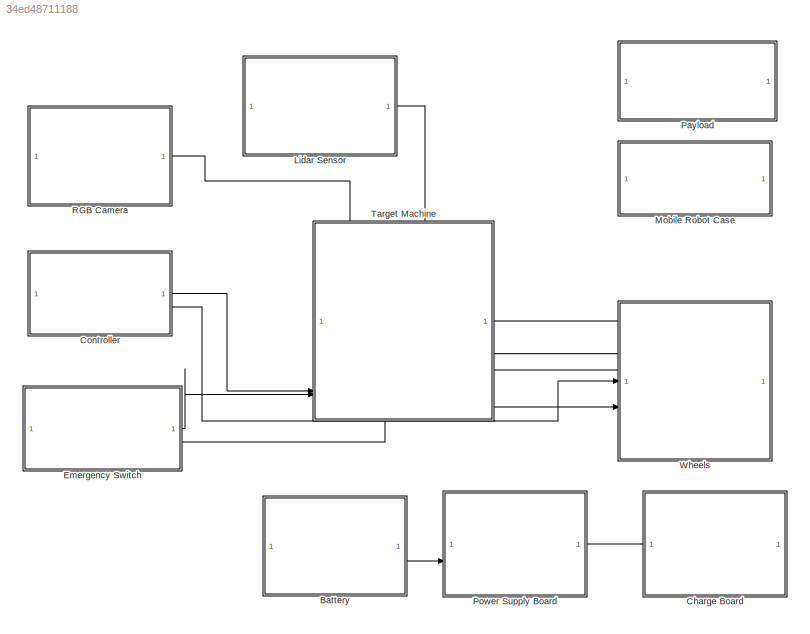
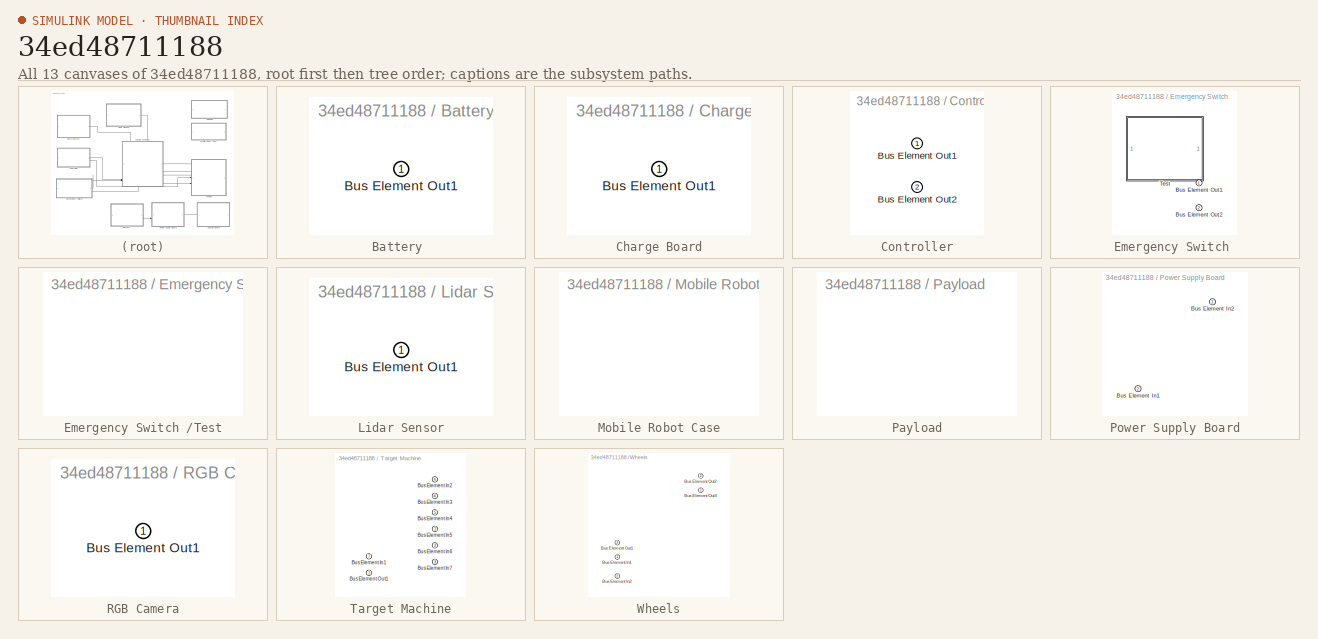
[diagram: thumbnail index - all 13 canvases of the model, root first then tree order]
MODEL slx_34ed48711188
KIND model
CONFIG AbsTol = auto
CONFIG EnableMultiTasking = off
CONFIG FixedStep = auto
CONFIG MaxStep = auto
CONFIG MinStep = auto
CONFIG RelTol = 1e-3
CONFIG SampleTimeConstraint = Unconstrained
CONFIG SolverName = VariableStepAuto
CONFIG StartTime = 0.0
CONFIG StopTime = 10.0
BLOCK [SubSystem] Battery 
  PortSchema = {"entries":[{"content":{"headerSize":26,"margin":15,"minimumSpacing":25,"sides":[{"content":{},"type":"ConnectorPlacement.EquallySpacedRectSide","uuid":"52cfc6e8-b07b-405a-8482-438c255d2b0b"},{"content":{"connectorIds":["Out1"],"side":"RIGHT"},"type":"ConnectorPlacement.EquallySpacedRectSide","uuid":"f1465f6c-6812-4300-a41b-f67868e7a52d"},{"content":{"side":"TOP"},"type":"ConnectorPlacement.Equall...<+248ch>
BLOCK [Outport] Battery /Bus Element Out1
BLOCK [SubSystem] Charge Board
  PortSchema = {"entries":[{"content":{"headerSize":26,"margin":15,"minimumSpacing":25,"sides":[{"content":{"connectorIds":["Out1"]},"type":"ConnectorPlacement.EquallySpacedRectSide","uuid":"52cfc6e8-b07b-405a-8482-438c255d2b0b"},{"content":{"side":"RIGHT"},"type":"ConnectorPlacement.EquallySpacedRectSide","uuid":"f1465f6c-6812-4300-a41b-f67868e7a52d"},{"content":{"side":"TOP"},"type":"ConnectorPlacement.Equally...<+373ch>
BLOCK [Outport] Charge Board/Bus Element Out1
BLOCK [SubSystem] Controller
  PortSchema = {"entries":[{"content":{"headerSize":26,"margin":15,"minimumSpacing":25,"sides":[{"content":{},"type":"ConnectorPlacement.EquallySpacedRectSide","uuid":"52cfc6e8-b07b-405a-8482-438c255d2b0b"},{"content":{"connectorIds":["Out1","Out2"],"side":"RIGHT"},"type":"ConnectorPlacement.EquallySpacedRectSide","uuid":"f1465f6c-6812-4300-a41b-f67868e7a52d"},{"content":{"side":"TOP"},"type":"ConnectorPlacement...<+255ch>
BLOCK [Outport] Controller/Bus Element Out1
BLOCK [Outport] Controller/Bus Element Out2
  Port = 2
BLOCK [SubSystem] Emergency Switch 
  PortSchema = {"entries":[{"content":{"headerSize":26,"margin":15,"minimumSpacing":25,"sides":[{"content":{},"type":"ConnectorPlacement.EquallySpacedRectSide","uuid":"52cfc6e8-b07b-405a-8482-438c255d2b0b"},{"content":{"connectorIds":["Out1","Out2"],"side":"RIGHT"},"type":"ConnectorPlacement.EquallySpacedRectSide","uuid":"f1465f6c-6812-4300-a41b-f67868e7a52d"},{"content":{"side":"TOP"},"type":"ConnectorPlacement...<+255ch>
BLOCK [Outport] Emergency Switch /Bus Element Out1
BLOCK [Outport] Emergency Switch /Bus Element Out2
  Port = 2
BLOCK [SubSystem] Emergency Switch /Test
  PortSchema = {"entries":[{"content":{"headerSize":26,"margin":15,"minimumSpacing":25,"sides":[{"content":{},"type":"ConnectorPlacement.EquallySpacedRectSide","uuid":"a14bca50-eec3-4643-9852-5ab0485d1fad"},{"content":{"side":"RIGHT"},"type":"ConnectorPlacement.EquallySpacedRectSide","uuid":"4c9be622-01ab-4851-b0cd-6570d8f0c0ef"},{"content":{"side":"TOP"},"type":"ConnectorPlacement.EquallySpacedRectSide","uuid":...<+224ch>
BLOCK [SubSystem] Lidar Sensor
  PortSchema = {"entries":[{"content":{"headerSize":26,"margin":15,"minimumSpacing":25,"sides":[{"content":{},"type":"ConnectorPlacement.EquallySpacedRectSide","uuid":"52cfc6e8-b07b-405a-8482-438c255d2b0b"},{"content":{"connectorIds":["Out1"],"side":"RIGHT"},"type":"ConnectorPlacement.EquallySpacedRectSide","uuid":"f1465f6c-6812-4300-a41b-f67868e7a52d"},{"content":{"side":"TOP"},"type":"ConnectorPlacement.Equall...<+248ch>
BLOCK [Outport] Lidar Sensor/Bus Element Out1
BLOCK [SubSystem] Mobile Robot Case
  PortSchema = {"entries":[{"content":{"headerSize":26,"margin":15,"minimumSpacing":25,"sides":[{"content":{},"type":"ConnectorPlacement.EquallySpacedRectSide","uuid":"52cfc6e8-b07b-405a-8482-438c255d2b0b"},{"content":{"side":"RIGHT"},"type":"ConnectorPlacement.EquallySpacedRectSide","uuid":"f1465f6c-6812-4300-a41b-f67868e7a52d"},{"content":{"side":"TOP"},"type":"ConnectorPlacement.EquallySpacedRectSide","uuid":...<+224ch>
BLOCK [SubSystem] Payload
  PortSchema = {"entries":[{"content":{"headerSize":26,"margin":15,"minimumSpacing":25,"sides":[{"content":{},"type":"ConnectorPlacement.EquallySpacedRectSide","uuid":"52cfc6e8-b07b-405a-8482-438c255d2b0b"},{"content":{"side":"RIGHT"},"type":"ConnectorPlacement.EquallySpacedRectSide","uuid":"f1465f6c-6812-4300-a41b-f67868e7a52d"},{"content":{"side":"TOP"},"type":"ConnectorPlacement.EquallySpacedRectSide","uuid":...<+224ch>
BLOCK [SubSystem] Power Supply Board
  PortSchema = {"entries":[{"content":{"headerSize":26,"margin":15,"minimumSpacing":25,"sides":[{"content":{"connectorIds":["In2"]},"type":"ConnectorPlacement.EquallySpacedRectSide","uuid":"52cfc6e8-b07b-405a-8482-438c255d2b0b"},{"content":{"connectorIds":["In1"],"side":"RIGHT"},"type":"ConnectorPlacement.EquallySpacedRectSide","uuid":"f1465f6c-6812-4300-a41b-f67868e7a52d"},{"content":{"side":"TOP"},"type":"Conn...<+269ch>
BLOCK [Inport] Power Supply Board/Bus Element In1
  Port = 2
BLOCK [Inport] Power Supply Board/Bus Element In2
BLOCK [SubSystem] RGB Camera
  PortSchema = {"entries":[{"content":{"headerSize":26,"margin":15,"minimumSpacing":25,"sides":[{"content":{},"type":"ConnectorPlacement.EquallySpacedRectSide","uuid":"52cfc6e8-b07b-405a-8482-438c255d2b0b"},{"content":{"connectorIds":["Out1"],"side":"RIGHT"},"type":"ConnectorPlacement.EquallySpacedRectSide","uuid":"f1465f6c-6812-4300-a41b-f67868e7a52d"},{"content":{"side":"TOP"},"type":"ConnectorPlacement.Equall...<+374ch>
BLOCK [Outport] RGB Camera/Bus Element Out1
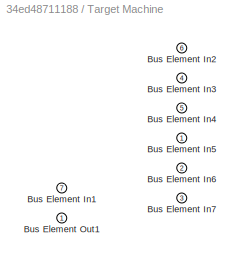
BLOCK [SubSystem] Target Machine
  PortSchema = {"entries":[{"content":{"headerSize":26,"margin":15,"minimumSpacing":25,"sides":[{"content":{"connectorIds":["In6","In7"]},"type":"ConnectorPlacement.EquallySpacedRectSide","uuid":"52cfc6e8-b07b-405a-8482-438c255d2b0b"},{"content":{"connectorIds":["In1","In2","In3"],"side":"RIGHT"},"type":"ConnectorPlacement.EquallySpacedRectSide","uuid":"f1465f6c-6812-4300-a41b-f67868e7a52d"},{"content":{"connect...<+466ch>
BLOCK [Inport] Target Machine/Bus Element In1
  Port = 7
BLOCK [Inport] Target Machine/Bus Element In2
  Port = 6
BLOCK [Inport] Target Machine/Bus Element In3
  Port = 4
BLOCK [Inport] Target Machine/Bus Element In4
  Port = 5
BLOCK [Inport] Target Machine/Bus Element In5
BLOCK [Inport] Target Machine/Bus Element In6
  Port = 2
BLOCK [Inport] Target Machine/Bus Element In7
  Port = 3
BLOCK [Outport] Target Machine/Bus Element Out1
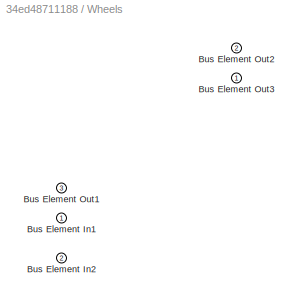
BLOCK [SubSystem] Wheels
  PortSchema = {"entries":[{"content":{"headerSize":26,"margin":15,"minimumSpacing":25,"sides":[{"content":{"connectorIds":["Out3","Out2","Out1","In1","In2"]},"type":"ConnectorPlacement.EquallySpacedRectSide","uuid":"52cfc6e8-b07b-405a-8482-438c255d2b0b"},{"content":{"side":"RIGHT"},"type":"ConnectorPlacement.EquallySpacedRectSide","uuid":"f1465f6c-6812-4300-a41b-f67868e7a52d"},{"content":{"side":"TOP"},"type":"...<+399ch>
BLOCK [Inport] Wheels/Bus Element In1
BLOCK [Inport] Wheels/Bus Element In2
  Port = 2
BLOCK [Outport] Wheels/Bus Element Out1
  Port = 3
BLOCK [Outport] Wheels/Bus Element Out2
  Port = 2
BLOCK [Outport] Wheels/Bus Element Out3
LINE Battery :1 -> Power Supply Board:2
LINE Charge Board:1 -> Power Supply Board:1
LINE Controller:1 -> Target Machine:6
LINE Controller:2 -> Wheels:1
LINE Emergency Switch :1 -> Target Machine:7
LINE Emergency Switch :2 -> Wheels:2
LINE Lidar Sensor:1 -> Target Machine:5
LINE RGB Camera:1 -> Target Machine:4
LINE Wheels:1 -> Target Machine:3
LINE Wheels:2 -> Target Machine:2
LINE Wheels:3 -> Target Machine:1
